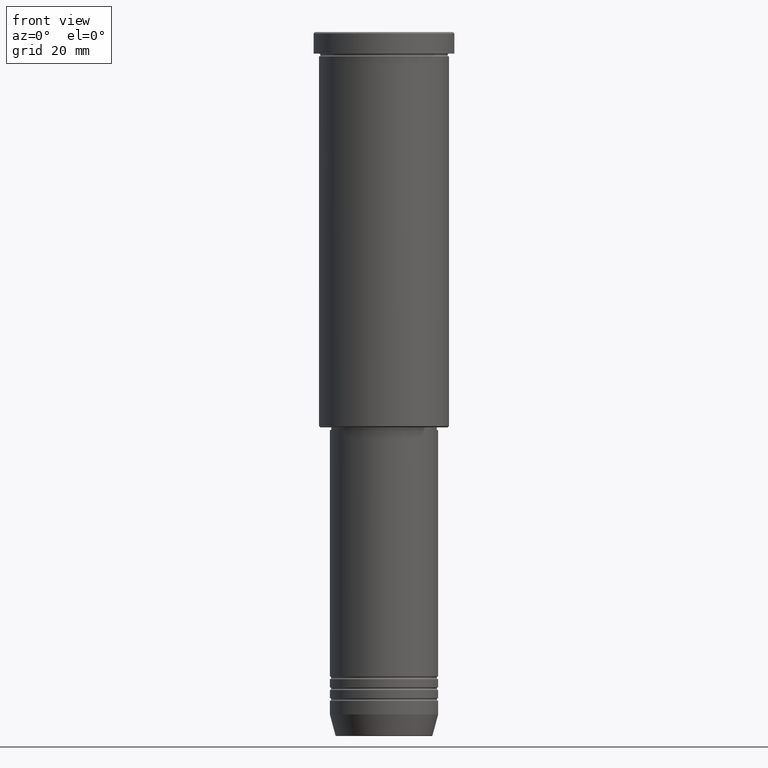
[diagram: clean part render]
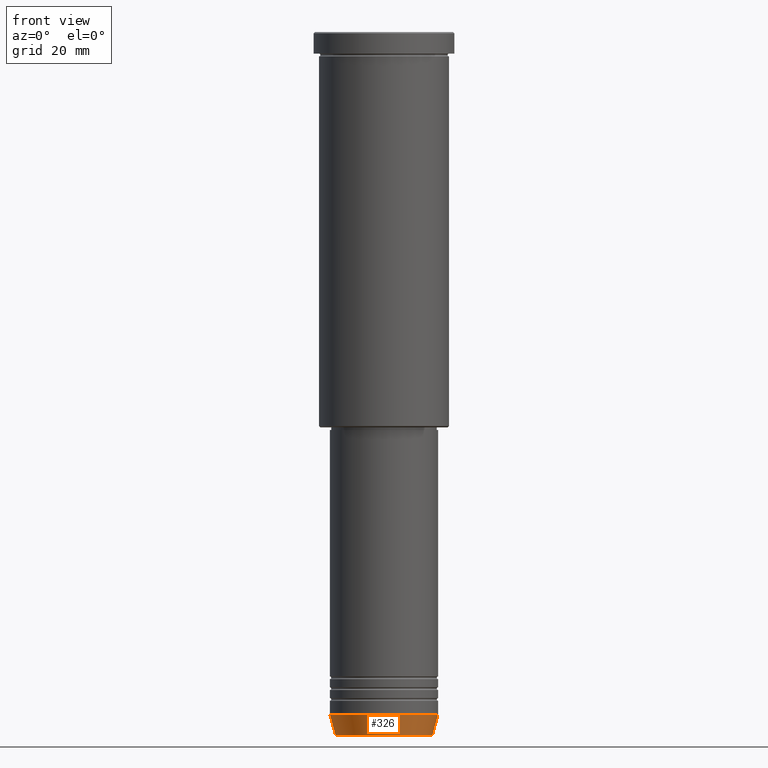
[diagram: same view with one face highlighted and labeled with its STEP entity id]
A machine part, front view. The second image highlights one B-rep face of the part: STEP entity #326.
In plain terms, the highlighted conical surface has half-angle 15 deg.
Its self-contained STEP definition (entity closure, byte-faithful):
#20 = EDGE_CURVE ( 'NONE', #318, #496, #122, .T. ) ;
#60 = ORIENTED_EDGE ( 'NONE', *, *, #20, .F. ) ;
#85 = LINE ( 'NONE', #454, #768 ) ;
#122 = CIRCLE ( 'NONE', #388, 20.00000000000000355 ) ;
#162 = EDGE_LOOP ( 'NONE', ( #333, #475, #414, #60 ) ) ;
#222 = DIRECTION ( 'NONE',  ( 0.2588190451025212391, 0.000000000000000000, 0.9659258262890680902 ) ) ;
#282 = CARTESIAN_POINT ( 'NONE',  ( 20.00000000000000355, 0.000000000000000000, -252.0000000000000000 ) ) ;
#306 = LINE ( 'NONE', #400, #844 ) ;
#318 = VERTEX_POINT ( 'NONE', #707 ) ;
#326 = ADVANCED_FACE ( 'NONE', ( #793 ), #421, .T. ) ;
#333 = ORIENTED_EDGE ( 'NONE', *, *, #536, .F. ) ;
#336 = AXIS2_PLACEMENT_3D ( 'NONE', #743, #489, #747 ) ;
#368 = CARTESIAN_POINT ( 'NONE',  ( -17.95570587970608045, 2.324116685748021371E-15, -259.6294095225512706 ) ) ;
#388 = AXIS2_PLACEMENT_3D ( 'NONE', #422, #789, #1158 ) ;
#400 = CARTESIAN_POINT ( 'NONE',  ( 20.00000000000000355, 0.000000000000000000, -252.0000000000000000 ) ) ;
#414 = ORIENTED_EDGE ( 'NONE', *, *, #644, .T. ) ;
#421 = CONICAL_SURFACE ( 'NONE', #658, 20.00000000000000355, 0.2617993877991499629 ) ;
#422 = CARTESIAN_POINT ( 'NONE',  ( 0.000000000000000000, 0.000000000000000000, -252.0000000000000000 ) ) ;
#454 = CARTESIAN_POINT ( 'NONE',  ( -20.00000000000000355, 2.449293598294706907E-15, -252.0000000000000000 ) ) ;
#475 = ORIENTED_EDGE ( 'NONE', *, *, #1166, .T. ) ;
#489 = DIRECTION ( 'NONE',  ( -0.000000000000000000, -0.000000000000000000, 1.000000000000000000 ) ) ;
#496 = VERTEX_POINT ( 'NONE', #282 ) ;
#518 = DIRECTION ( 'NONE',  ( -0.000000000000000000, -0.000000000000000000, 1.000000000000000000 ) ) ;
#536 = EDGE_CURVE ( 'NONE', #968, #318, #85, .T. ) ;
#605 = DIRECTION ( 'NONE',  ( 1.000000000000000000, 0.000000000000000000, 0.000000000000000000 ) ) ;
#644 = EDGE_CURVE ( 'NONE', #794, #496, #306, .T. ) ;
#658 = AXIS2_PLACEMENT_3D ( 'NONE', #885, #518, #605 ) ;
#707 = CARTESIAN_POINT ( 'NONE',  ( -20.00000000000000355, 2.449293598294706907E-15, -252.0000000000000000 ) ) ;
#743 = CARTESIAN_POINT ( 'NONE',  ( 0.000000000000000000, 0.000000000000000000, -259.6294095225512706 ) ) ;
#747 = DIRECTION ( 'NONE',  ( 1.000000000000000000, 0.000000000000000000, 0.000000000000000000 ) ) ;
#768 = VECTOR ( 'NONE', #1001, 1000.000000000000114 ) ;
#789 = DIRECTION ( 'NONE',  ( -0.000000000000000000, -0.000000000000000000, 1.000000000000000000 ) ) ;
#793 = FACE_OUTER_BOUND ( 'NONE', #162, .T. ) ;
#794 = VERTEX_POINT ( 'NONE', #954 ) ;
#844 = VECTOR ( 'NONE', #222, 1000.000000000000114 ) ;
#845 = CIRCLE ( 'NONE', #336, 17.95570587970608045 ) ;
#885 = CARTESIAN_POINT ( 'NONE',  ( 0.000000000000000000, 0.000000000000000000, -252.0000000000000000 ) ) ;
#954 = CARTESIAN_POINT ( 'NONE',  ( 17.95570587970608045, 0.000000000000000000, -259.6294095225512706 ) ) ;
#968 = VERTEX_POINT ( 'NONE', #368 ) ;
#1001 = DIRECTION ( 'NONE',  ( -0.2588190451025212391, 3.169619151431771721E-17, 0.9659258262890680902 ) ) ;
#1158 = DIRECTION ( 'NONE',  ( 1.000000000000000000, 0.000000000000000000, 0.000000000000000000 ) ) ;
#1166 = EDGE_CURVE ( 'NONE', #968, #794, #845, .T. ) ;